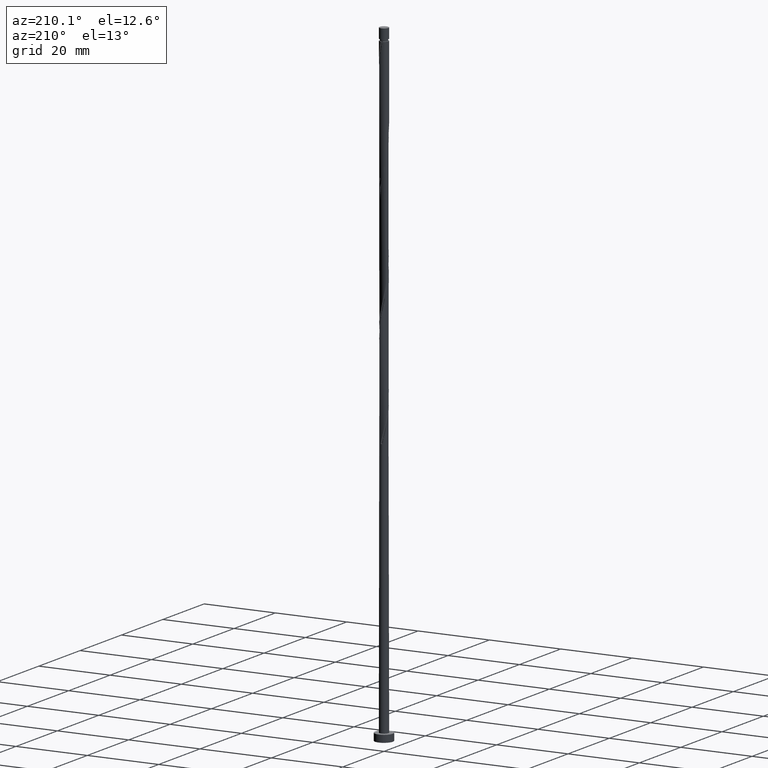
[diagram: clean part render]
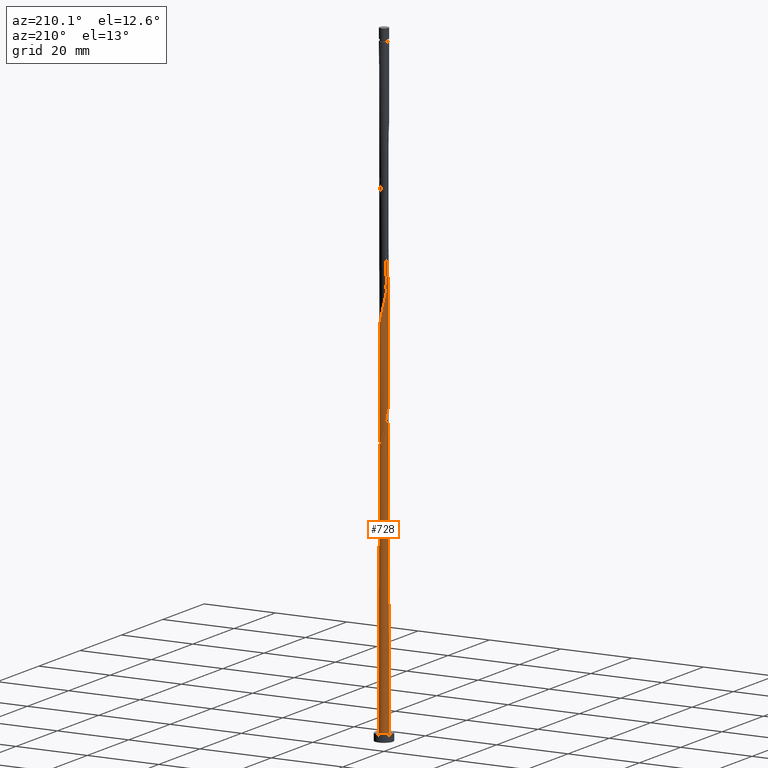
[diagram: same view with one face highlighted and labeled with its STEP entity id]
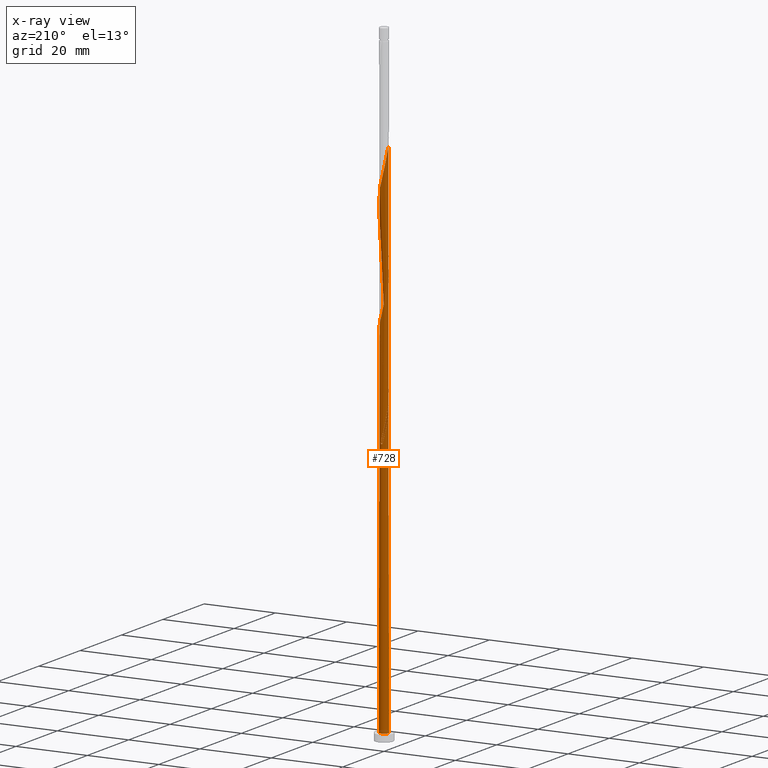
[diagram: x-ray of the same camera — body ghosted, the highlighted face saturated]
A machine part, auxiliary view. The second image highlights one B-rep face of the part: STEP entity #728.
The next image is the same camera in x-ray: the body ghosted, the highlighted face saturated — about 0% of this face is hidden behind the body in this view.
In plain terms, the highlighted cylindrical surface (bore or boss wall) has radius 1.25 mm, axis along (-0, -0, -1).
Its self-contained STEP definition (entity closure, byte-faithful):
#4 = CARTESIAN_POINT ( 'NONE',  ( 1.118878712613875503, 0.5573243458342023171, 133.7347614858564953 ) ) ;
#13 = CARTESIAN_POINT ( 'NONE',  ( 1.247639561794345431, -0.07678231466697474361, 130.9569837080787238 ) ) ;
#20 = CARTESIAN_POINT ( 'NONE',  ( -1.225000000000001643, -0.2487468592766560738, 115.6792059303009665 ) ) ;
#23 = CARTESIAN_POINT ( 'NONE',  ( -1.250000000000001554, -1.443040198809304432E-15, 81.28230594175752799 ) ) ;
#27 = CARTESIAN_POINT ( 'NONE',  ( -0.6903152159601426696, -1.042096397946901565, 119.8458725969675953 ) ) ;
#78 = CARTESIAN_POINT ( 'NONE',  ( 1.132978120250636156, -0.5531206224436048258, 95.54031704141206660 ) ) ;
#87 = CARTESIAN_POINT ( 'NONE',  ( 0.2487468592766559627, -1.225000000000001643, 90.67920593030093812 ) ) ;
#98 = DIRECTION ( 'NONE',  ( -0.000000000000000000, -0.000000000000000000, -1.000000000000000000 ) ) ;
#102 = CARTESIAN_POINT ( 'NONE',  ( -1.118878712613875059, -0.5573243458342029832, 83.73476148585649526 ) ) ;
#117 = CARTESIAN_POINT ( 'NONE',  ( -0.2487468592766557962, 1.225000000000001643, 140.6792059303009523 ) ) ;
#124 = CARTESIAN_POINT ( 'NONE',  ( 0.9365076899976113589, 0.8279210992451772055, 101.7903170414120524 ) ) ;
#132 = CARTESIAN_POINT ( 'NONE',  ( -0.2410371790660436331, -1.237530978297897155, 121.9292059303009665 ) ) ;
#140 = CARTESIAN_POINT ( 'NONE',  ( 1.045505570518540983, 0.7046275228471891028, 134.4292059303009523 ) ) ;
#147 = CARTESIAN_POINT ( 'NONE',  ( 1.185254549274266767, -0.3970789007548243266, 129.5680948191898096 ) ) ;
#157 = CARTESIAN_POINT ( 'NONE',  ( -1.118878712613872839, 0.5573243458342023171, 80.95698370807873800 ) ) ;
#170 = EDGE_CURVE ( 'NONE', #1108, #864, #770, .T. ) ;
#186 = CARTESIAN_POINT ( 'NONE',  ( -1.237530978297897155, 0.2410371790660435221, 146.9292059303009523 ) ) ;
#188 = DIRECTION ( 'NONE',  ( -0.000000000000000000, -0.000000000000000000, -1.000000000000000000 ) ) ;
#196 = CARTESIAN_POINT ( 'NONE',  ( 0.7046275228471893248, -1.045505570518540983, 92.76253926363428093 ) ) ;
#199 = VERTEX_POINT ( 'NONE', #948 ) ;
#209 = ORIENTED_EDGE ( 'NONE', *, *, #856, .F. ) ;
#225 = CARTESIAN_POINT ( 'NONE',  ( -1.042096397946901787, 0.6903152159601426696, 78.17920593030092391 ) ) ;
#230 = CARTESIAN_POINT ( 'NONE',  ( -0.07678231466697406360, -1.247639561794345431, 89.29031704141205239 ) ) ;
#233 = CARTESIAN_POINT ( 'NONE',  ( -1.250000000000001554, 0.03842743957209403954, 81.11914225372937892 ) ) ;
#237 = CARTESIAN_POINT ( 'NONE',  ( 0.6903152159601426696, 1.042096397946901121, 136.5125392636342951 ) ) ;
#244 = CARTESIAN_POINT ( 'NONE',  ( -1.045505570518540983, -0.7046275228471895469, 117.7625392636342809 ) ) ;
#254 = CARTESIAN_POINT ( 'NONE',  ( 0.2410371790660443270, 1.237530978297896933, 105.2625392636342809 ) ) ;
#261 = CARTESIAN_POINT ( 'NONE',  ( 1.225000000000001643, 0.2487468592766559072, 132.3458725969676095 ) ) ;
#271 = CARTESIAN_POINT ( 'NONE',  ( -0.07678231466697406360, -1.247639561794345431, 122.6236503747453668 ) ) ;
#284 = ORIENTED_EDGE ( 'NONE', *, *, #393, .F. ) ;
#287 = CARTESIAN_POINT ( 'NONE',  ( -1.250000000000002220, 0.03842743957208432509, 147.7858089203961072 ) ) ;
#289 = CARTESIAN_POINT ( 'NONE',  ( -0.8275098094766792922, 0.9512146756431647532, 78.87365037474536678 ) ) ;
#309 = VERTEX_POINT ( 'NONE', #934 ) ;
#313 = CARTESIAN_POINT ( 'NONE',  ( -1.250000000000000000, -1.416871076032980706E-15, 83.40943925217766264 ) ) ;
#323 = EDGE_CURVE ( 'NONE', #472, #1108, #445, .T. ) ;
#336 = CARTESIAN_POINT ( 'NONE',  ( -1.247639561794345431, 0.07678231466697399421, 80.95698370807872379 ) ) ;
#349 = DIRECTION ( 'NONE',  ( 0.000000000000000000, 0.000000000000000000, 1.000000000000000000 ) ) ;
#362 = CARTESIAN_POINT ( 'NONE',  ( -1.185254549274266767, 0.3970789007548239935, 112.9014281525231524 ) ) ;
#366 = ORIENTED_EDGE ( 'NONE', *, *, #1012, .F. ) ;
#370 = CARTESIAN_POINT ( 'NONE',  ( -1.247639561794345431, 0.07678231466697399421, 114.2903170414120098 ) ) ;
#379 = CARTESIAN_POINT ( 'NONE',  ( 0.3970789007548243266, 1.185254549274266545, 137.9014281525231524 ) ) ;
#388 = CARTESIAN_POINT ( 'NONE',  ( -0.3970789007548242155, -1.185254549274266767, 121.2347614858565095 ) ) ;
#393 = EDGE_CURVE ( 'NONE', #1166, #472, #1492, .T. ) ;
#397 = CARTESIAN_POINT ( 'NONE',  ( -0.8279210992451777607, 0.9365076899976108038, 110.1236503747453668 ) ) ;
#401 = CIRCLE ( 'NONE', #824, 1.250000000000000000 ) ;
#411 = CARTESIAN_POINT ( 'NONE',  ( -1.185254549274266767, 0.3970789007548239935, 146.2347614858564953 ) ) ;
#445 = LINE ( 'NONE', #810, #1324 ) ;
#465 = CYLINDRICAL_SURFACE ( 'NONE', #711, 1.250000000000000000 ) ;
#472 = VERTEX_POINT ( 'NONE', #1201 ) ;
#489 = CARTESIAN_POINT ( 'NONE',  ( 0.2487468592766562125, 1.224999999999999645, 74.01253926363426672 ) ) ;
#494 = CARTESIAN_POINT ( 'NONE',  ( -0.7046275228471897689, 1.045505570518540761, 109.4292059303009665 ) ) ;
#502 = CARTESIAN_POINT ( 'NONE',  ( 0.6903152159601426696, 1.042096397946901121, 103.1792059303009381 ) ) ;
#509 = CARTESIAN_POINT ( 'NONE',  ( 1.192251854709210024, 0.4100211688212159755, 133.0403170414120666 ) ) ;
#517 = CARTESIAN_POINT ( 'NONE',  ( -1.132978120250636822, 0.5531206224436041596, 112.2069837080787238 ) ) ;
#521 = CARTESIAN_POINT ( 'NONE',  ( -1.250000000000000000, 0.000000000000000000, 2.000000000000000000 ) ) ;
#538 = EDGE_CURVE ( 'NONE', #1231, #199, #401, .T. ) ;
#554 = CARTESIAN_POINT ( 'NONE',  ( -0.9512146756431660855, 0.8275098094766810686, 144.1514281525232377 ) ) ;
#573 = CARTESIAN_POINT ( 'NONE',  ( 1.185254549274266767, -0.3970789007548243266, 96.23476148585648104 ) ) ;
#602 = CARTESIAN_POINT ( 'NONE',  ( -1.045505570518540983, -0.7046275228471895469, 84.42920593030093812 ) ) ;
#609 = CARTESIAN_POINT ( 'NONE',  ( 0.08747254973209546425, -1.257748145290794151, 89.98476148585650947 ) ) ;
#613 = ORIENTED_EDGE ( 'NONE', *, *, #983, .T. ) ;
#616 = CARTESIAN_POINT ( 'NONE',  ( -0.5573243458342029832, 1.118878712613875059, 142.0680948191898949 ) ) ;
#624 = CARTESIAN_POINT ( 'NONE',  ( 0.9512146756431656414, -0.8275098094766812906, 127.4847614858565237 ) ) ;
#632 = CARTESIAN_POINT ( 'NONE',  ( 1.257748145290794151, 0.08747254973209481199, 131.6514281525232093 ) ) ;
#639 = CARTESIAN_POINT ( 'NONE',  ( 0.8275098094766818457, 0.9512146756431651973, 102.4847614858564810 ) ) ;
#647 = CARTESIAN_POINT ( 'NONE',  ( -1.237530978297897155, 0.2410371790660435221, 113.5958725969676237 ) ) ;
#656 = CARTESIAN_POINT ( 'NONE',  ( -1.045505570518538763, 0.7046275228471886587, 80.26253926363426672 ) ) ;
#670 = CARTESIAN_POINT ( 'NONE',  ( -0.8279210992451777607, 0.9365076899976108038, 143.4569837080787238 ) ) ;
#686 = CARTESIAN_POINT ( 'NONE',  ( -1.247639561794345431, 0.07678231466697399421, 147.6236503747454094 ) ) ;
#688 = CARTESIAN_POINT ( 'NONE',  ( -1.224999999999999645, 0.2487468592766559072, 82.34587259696759531 ) ) ;
#698 = CARTESIAN_POINT ( 'NONE',  ( 0.9512146756431656414, -0.8275098094766812906, 94.15142815252315245 ) ) ;
#705 = CARTESIAN_POINT ( 'NONE',  ( -0.3970789007548228278, 1.185254549274265212, 76.79031704141203818 ) ) ;
#709 = DIRECTION ( 'NONE',  ( -1.000000000000000000, 0.000000000000000000, 0.000000000000000000 ) ) ;
#711 = AXIS2_PLACEMENT_3D ( 'NONE', #1107, #974, #709 ) ;
#724 = CARTESIAN_POINT ( 'NONE',  ( -0.4100211688212162531, 1.192251854709209580, 74.70698370807873800 ) ) ;
#728 = ADVANCED_FACE ( 'NONE', ( #1593 ), #465, .T. ) ;
#731 = CARTESIAN_POINT ( 'NONE',  ( -1.250000000000001554, -1.443040198809304432E-15, 81.28230594175752799 ) ) ;
#732 = CARTESIAN_POINT ( 'NONE',  ( 0.08747254973209603324, 1.257748145290791930, 74.70698370807869537 ) ) ;
#737 = CARTESIAN_POINT ( 'NONE',  ( 0.2410371790660443270, 1.237530978297896933, 138.5958725969675811 ) ) ;
#747 = CARTESIAN_POINT ( 'NONE',  ( 0.8279210992451776496, -0.9365076899976111369, 126.7903170414120382 ) ) ;
#755 = CARTESIAN_POINT ( 'NONE',  ( -0.9365076899976109148, -0.8279210992451776496, 118.4569837080787380 ) ) ;
#764 = CARTESIAN_POINT ( 'NONE',  ( -0.4100211688212162531, 1.192251854709209580, 108.0403170414120666 ) ) ;
#766 = VECTOR ( 'NONE', #98, 1000.000000000000000 ) ;
#770 =( BOUNDED_CURVE ( )  B_SPLINE_CURVE ( 2, ( #313, #818, #688, #1292, #157, #656, #1172, #289, #795, #952, #705, #872, #1367, #732, #1502 ),
 .UNSPECIFIED., .F., .T. ) 
 B_SPLINE_CURVE_WITH_KNOTS ( ( 3, 2, 2, 2, 2, 2, 2, 3 ),
 ( 0.9295317669814462391, 0.9375000000000000000, 0.9479166666666666297, 0.9583333333333333703, 0.9687500000000000000, 0.9791666666666666297, 0.9895833333333333703, 1.000000000000000000 ),
 .UNSPECIFIED. ) 
 CURVE ( )  GEOMETRIC_REPRESENTATION_ITEM ( )  RATIONAL_B_SPLINE_CURVE ( ( 0.9062941362546588220, 0.9031415850403630152, 0.9090909090909385926, 0.9013135103398568493, 0.9090909090909385926, 0.9013135103398568493, 0.9090909090909385926, 0.9013135103398568493, 0.9090909090909385926, 0.9013135103398568493, 0.9090909090909385926, 0.9013135103398568493, 0.9090909090909385926, 0.9013135103398568493, 0.9090909090909385926 ) ) 
 REPRESENTATION_ITEM ( '' )  );
#775 = CARTESIAN_POINT ( 'NONE',  ( 0.7046275228471893248, -1.045505570518540983, 126.0958725969676095 ) ) ;
#795 = CARTESIAN_POINT ( 'NONE',  ( -0.6903152159601410043, 1.042096397946900010, 78.17920593030093812 ) ) ;
#810 = CARTESIAN_POINT ( 'NONE',  ( -1.250000000000000000, 0.000000000000000000, 177.3000000000000114 ) ) ;
#818 = CARTESIAN_POINT ( 'NONE',  ( -1.249999999999999778, 0.1256297269074014289, 82.87601288298839108 ) ) ;
#824 = AXIS2_PLACEMENT_3D ( 'NONE', #1066, #1560, #1423 ) ;
#837 = CARTESIAN_POINT ( 'NONE',  ( -0.2410371790660436331, -1.237530978297897155, 88.59587259696762374 ) ) ;
#848 = DIRECTION ( 'NONE',  ( 1.000000000000000000, 0.000000000000000000, 0.000000000000000000 ) ) ;
#856 = EDGE_CURVE ( 'NONE', #309, #1166, #1158, .T. ) ;
#860 = CARTESIAN_POINT ( 'NONE',  ( -0.5531206224436046037, -1.132978120250636822, 87.20698370807872379 ) ) ;
#864 = VERTEX_POINT ( 'NONE', #489 ) ;
#869 = CARTESIAN_POINT ( 'NONE',  ( -1.118878712613875059, -0.5573243458342029832, 117.0680948191898381 ) ) ;
#872 = CARTESIAN_POINT ( 'NONE',  ( -0.2410371790660428004, 1.237530978297895379, 76.09587259696759531 ) ) ;
#879 = CARTESIAN_POINT ( 'NONE',  ( -1.192251854709210024, -0.4100211688212160865, 116.3736503747453952 ) ) ;
#887 = CARTESIAN_POINT ( 'NONE',  ( -0.08747254973209467321, 1.257748145290794151, 139.9847614858564384 ) ) ;
#890 = CARTESIAN_POINT ( 'NONE',  ( 0.000000000000000000, 0.000000000000000000, 74.01253926363426672 ) ) ;
#895 = CARTESIAN_POINT ( 'NONE',  ( 0.08747254973209546425, -1.257748145290794151, 123.3180948191898096 ) ) ;
#902 = CARTESIAN_POINT ( 'NONE',  ( -1.257748145290794151, -0.08747254973209581119, 114.9847614858564953 ) ) ;
#911 = CARTESIAN_POINT ( 'NONE',  ( -1.250000000000001776, 7.177816532937473053E-16, 147.9489726084242704 ) ) ;
#934 = CARTESIAN_POINT ( 'NONE',  ( -0.2487468592766557962, 1.225000000000001643, 74.01253926363426672 ) ) ;
#948 = CARTESIAN_POINT ( 'NONE',  ( 1.250000000000000000, 0.000000000000000000, 2.000000000000000000 ) ) ;
#952 = CARTESIAN_POINT ( 'NONE',  ( -0.5531206224436029384, 1.132978120250634380, 77.48476148585650947 ) ) ;
#956 = ORIENTED_EDGE ( 'NONE', *, *, #538, .T. ) ;
#964 = CARTESIAN_POINT ( 'NONE',  ( 1.257748145290794151, 0.08747254973209481199, 98.31809481918983806 ) ) ;
#974 = DIRECTION ( 'NONE',  ( -0.000000000000000000, -0.000000000000000000, -1.000000000000000000 ) ) ;
#977 = CARTESIAN_POINT ( 'NONE',  ( -1.250000000000001554, -1.443040198809304432E-15, 81.28230594175752799 ) ) ;
#981 = CARTESIAN_POINT ( 'NONE',  ( -0.8279210992451777607, 0.9365076899976108038, 76.79031704141205239 ) ) ;
#983 = EDGE_CURVE ( 'NONE', #199, #1231, #985, .T. ) ;
#985 = CIRCLE ( 'NONE', #1222, 1.250000000000000000 ) ;
#989 = CARTESIAN_POINT ( 'NONE',  ( -0.9365076899976109148, -0.8279210992451776496, 85.12365037474538099 ) ) ;
#997 = CARTESIAN_POINT ( 'NONE',  ( 0.5573243458342025392, -1.118878712613875503, 125.4014281525231809 ) ) ;
#999 = CARTESIAN_POINT ( 'NONE',  ( -0.7046275228471897689, 1.045505570518540761, 76.09587259696758110 ) ) ;
#1004 = CARTESIAN_POINT ( 'NONE',  ( 1.192251854709210024, 0.4100211688212159755, 99.70698370807870958 ) ) ;
#1012 = EDGE_CURVE ( 'NONE', #1166, #1231, #1099, .T. ) ;
#1013 = CARTESIAN_POINT ( 'NONE',  ( 0.9365076899976113589, 0.8279210992451772055, 135.1236503747453526 ) ) ;
#1016 = CARTESIAN_POINT ( 'NONE',  ( -1.250000000000000000, -1.416871076032980706E-15, 83.40943925217766264 ) ) ;
#1020 = CARTESIAN_POINT ( 'NONE',  ( -0.4100211688212162531, 1.192251854709209580, 141.3736503747453526 ) ) ;
#1027 = CARTESIAN_POINT ( 'NONE',  ( 0.4100211688212159755, -1.192251854709210024, 124.7069837080787380 ) ) ;
#1037 = AXIS2_PLACEMENT_3D ( 'NONE', #890, #1392, #1630 ) ;
#1066 = CARTESIAN_POINT ( 'NONE',  ( 0.000000000000000000, 0.000000000000000000, 2.000000000000000000 ) ) ;
#1084 = CARTESIAN_POINT ( 'NONE',  ( 1.237530978297896933, -0.2410371790660442159, 96.92920593030095233 ) ) ;
#1095 = CARTESIAN_POINT ( 'NONE',  ( 0.8279210992451776496, -0.9365076899976111369, 93.45698370807868116 ) ) ;
#1099 = LINE ( 'NONE', #1615, #766 ) ;
#1107 = CARTESIAN_POINT ( 'NONE',  ( 0.000000000000000000, 0.000000000000000000, 177.3000000000000114 ) ) ;
#1108 = VERTEX_POINT ( 'NONE', #1016 ) ;
#1114 = CARTESIAN_POINT ( 'NONE',  ( 0.000000000000000000, 0.000000000000000000, 2.000000000000000000 ) ) ;
#1119 = CARTESIAN_POINT ( 'NONE',  ( 0.4100211688212159755, -1.192251854709210024, 91.37365037474539520 ) ) ;
#1121 = CARTESIAN_POINT ( 'NONE',  ( -0.5573243458342029832, 1.118878712613875059, 75.40142815252316666 ) ) ;
#1125 = CARTESIAN_POINT ( 'NONE',  ( -0.7046275228471897689, 1.045505570518540761, 142.7625392636343236 ) ) ;
#1134 = CARTESIAN_POINT ( 'NONE',  ( 1.132978120250636156, -0.5531206224436048258, 128.8736503747453810 ) ) ;
#1144 = CARTESIAN_POINT ( 'NONE',  ( 0.07678231466697481300, 1.247639561794345431, 139.2903170414120382 ) ) ;
#1151 = CARTESIAN_POINT ( 'NONE',  ( 0.07678231466697481300, 1.247639561794345431, 105.9569837080787380 ) ) ;
#1158 =( BOUNDED_CURVE ( )  B_SPLINE_CURVE ( 2, ( #1351, #724, #1121, #999, #981, #1230, #225, #1483, #1601, #1237, #336, #233, #731 ),
 .UNSPECIFIED., .F., .T. ) 
 B_SPLINE_CURVE_WITH_KNOTS ( ( 3, 2, 2, 2, 2, 2, 3 ),
 ( 0.000000000000000000, 0.01041666666666662966, 0.02083333333333337034, 0.03125000000000000000, 0.04166666666666662966, 0.05208333333333336340, 0.05453176698144614892 ),
 .UNSPECIFIED. ) 
 CURVE ( )  GEOMETRIC_REPRESENTATION_ITEM ( )  RATIONAL_B_SPLINE_CURVE ( ( 0.9090909090909453649, 0.9013135103398636216, 0.9090909090909453649, 0.9013135103398636216, 0.9090909090909453649, 0.9013135103398636216, 0.9090909090909453649, 0.9013135103398636216, 0.9090909090909453649, 0.9013135103398636216, 0.9090909090909453649, 0.9072628343904391990, 0.9062941362546657054 ) ) 
 REPRESENTATION_ITEM ( '' )  );
#1162 = CARTESIAN_POINT ( 'NONE',  ( 1.045505570518540983, 0.7046275228471891028, 101.0958725969676095 ) ) ;
#1166 = VERTEX_POINT ( 'NONE', #23 ) ;
#1172 = CARTESIAN_POINT ( 'NONE',  ( -0.9365076899976090274, 0.8279210992451766504, 79.56809481918985227 ) ) ;
#1182 = ORIENTED_EDGE ( 'NONE', *, *, #1371, .T. ) ;
#1201 = CARTESIAN_POINT ( 'NONE',  ( -1.250000000000001776, 7.177816532937473053E-16, 147.9489726084242704 ) ) ;
#1212 = CARTESIAN_POINT ( 'NONE',  ( 1.042096397946900899, -0.6903152159601431137, 94.84587259696762374 ) ) ;
#1219 = CARTESIAN_POINT ( 'NONE',  ( -0.8275098094766812906, -0.9512146756431656414, 85.81809481918983806 ) ) ;
#1222 = AXIS2_PLACEMENT_3D ( 'NONE', #1114, #349, #848 ) ;
#1230 = CARTESIAN_POINT ( 'NONE',  ( -0.9512146756431660855, 0.8275098094766810686, 77.48476148585650947 ) ) ;
#1231 = VERTEX_POINT ( 'NONE', #521 ) ;
#1234 = CARTESIAN_POINT ( 'NONE',  ( -1.192251854709210024, -0.4100211688212160865, 83.04031704141206660 ) ) ;
#1237 = CARTESIAN_POINT ( 'NONE',  ( -1.237530978297897155, 0.2410371790660435221, 80.26253926363428093 ) ) ;
#1250 = CARTESIAN_POINT ( 'NONE',  ( -0.08747254973209467321, 1.257748145290794151, 106.6514281525231667 ) ) ;
#1258 = CARTESIAN_POINT ( 'NONE',  ( -0.5573243458342029832, 1.118878712613875059, 108.7347614858564953 ) ) ;
#1267 = CARTESIAN_POINT ( 'NONE',  ( -1.042096397946901787, 0.6903152159601426696, 111.5125392636342951 ) ) ;
#1277 = CARTESIAN_POINT ( 'NONE',  ( -0.9512146756431660855, 0.8275098094766810686, 110.8180948191898665 ) ) ;
#1284 = CARTESIAN_POINT ( 'NONE',  ( 1.042096397946900899, -0.6903152159601431137, 128.1792059303009523 ) ) ;
#1292 = CARTESIAN_POINT ( 'NONE',  ( -1.192251854709207581, 0.4100211688212158090, 81.65142815252316666 ) ) ;
#1307 = CARTESIAN_POINT ( 'NONE',  ( -1.132978120250636822, 0.5531206224436041596, 145.5403170414120382 ) ) ;
#1324 = VECTOR ( 'NONE', #188, 1000.000000000000000 ) ;
#1334 = CARTESIAN_POINT ( 'NONE',  ( 0.5573243458342025392, -1.118878712613875503, 92.06809481918982385 ) ) ;
#1348 = CARTESIAN_POINT ( 'NONE',  ( -1.250000000000002442, -0.1256297269073996248, 81.81573231094679954 ) ) ;
#1351 = CARTESIAN_POINT ( 'NONE',  ( -0.2487468592766557962, 1.225000000000001643, 74.01253926363426672 ) ) ;
#1362 = CARTESIAN_POINT ( 'NONE',  ( -0.3970789007548242155, -1.185254549274266767, 87.90142815252318087 ) ) ;
#1367 = CARTESIAN_POINT ( 'NONE',  ( -0.07678231466697338359, 1.247639561794343432, 75.40142815252315245 ) ) ;
#1368 = EDGE_LOOP ( 'NONE', ( #1496, #284, #1471, #956, #613, #366, #209, #1182, #1585 ) ) ;
#1371 = EDGE_CURVE ( 'NONE', #309, #864, #1484, .T. ) ;
#1372 = CARTESIAN_POINT ( 'NONE',  ( 0.8275098094766818457, 0.9512146756431651973, 135.8180948191898096 ) ) ;
#1380 = CARTESIAN_POINT ( 'NONE',  ( 0.2487468592766559627, -1.225000000000001643, 124.0125392636342809 ) ) ;
#1389 = CARTESIAN_POINT ( 'NONE',  ( 1.225000000000001643, 0.2487468592766559072, 99.01253926363429514 ) ) ;
#1392 = DIRECTION ( 'NONE',  ( 0.000000000000000000, -0.000000000000000000, -1.000000000000000000 ) ) ;
#1398 = CARTESIAN_POINT ( 'NONE',  ( 1.118878712613875503, 0.5573243458342023171, 100.4014281525231667 ) ) ;
#1409 = CARTESIAN_POINT ( 'NONE',  ( -0.5531206224436046037, -1.132978120250636822, 120.5403170414120524 ) ) ;
#1423 = DIRECTION ( 'NONE',  ( 1.000000000000000000, 0.000000000000000000, 0.000000000000000000 ) ) ;
#1436 = CARTESIAN_POINT ( 'NONE',  ( -1.042096397946901787, 0.6903152159601426696, 144.8458725969676095 ) ) ;
#1471 = ORIENTED_EDGE ( 'NONE', *, *, #1012, .T. ) ;
#1483 = CARTESIAN_POINT ( 'NONE',  ( -1.132978120250636822, 0.5531206224436041596, 78.87365037474536678 ) ) ;
#1484 = CIRCLE ( 'NONE', #1037, 1.250000000000000000 ) ;
#1488 = CARTESIAN_POINT ( 'NONE',  ( -0.6903152159601426696, -1.042096397946901565, 86.51253926363423830 ) ) ;
#1492 =( BOUNDED_CURVE ( )  B_SPLINE_CURVE ( 2, ( #977, #1348, #1604, #1234, #102, #602, #989, #1219, #1488, #860, #1362, #837, #230, #609, #87, #1119, #1334, #196, #1095, #698, #1212, #78, #573, #1084, #1588, #964, #1389, #1004, #1398, #1162, #124, #639, #502, #1627, #1530, #254, #1151, #1250, #1505, #764, #1258, #494, #397, #1277, #1267, #517, #362, #647, #370, #902, #20, #879, #869, #244, #755, #1523, #27, #1409, #388, #132, #271, #895, #1380, #1027, #997, #775, #747, #624, #1284, #1134, #147, #1499, #13, #632, #261, #509, #4, #140, #1013, #1372, #237, #1515, #379, #737, #1144, #887, #117, #1020, #616, #1125, #670, #554, #1436, #1307, #411, #186, #686, #287, #911 ),
 .UNSPECIFIED., .F., .T. ) 
 B_SPLINE_CURVE_WITH_KNOTS ( ( 3, 2, 2, 2, 2, 2, 2, 2, 2, 2, 2, 2, 2, 2, 2, 2, 2, 2, 2, 2, 2, 2, 2, 2, 2, 2, 2, 2, 2, 2, 2, 2, 2, 2, 2, 2, 2, 2, 2, 2, 2, 2, 2, 2, 2, 2, 2, 2, 2, 3 ),
 ( 0.05453176698144614892, 0.06250000000000000000, 0.07291666666666662966, 0.08333333333333337034, 0.09375000000000000000, 0.1041666666666666297, 0.1145833333333333703, 0.1250000000000000000, 0.1354166666666666297, 0.1458333333333333703, 0.1562500000000000000, 0.1666666666666666297, 0.1770833333333333703, 0.1875000000000000000, 0.1979166666666666297, 0.2083333333333333703, 0.2187500000000000000, 0.2291666666666666297, 0.2395833333333333703, 0.2500000000000000000, 0.2604166666666666297, 0.2708333333333333703, 0.2812500000000000000, 0.2916666666666666297, 0.3020833333333333703, 0.3125000000000000000, 0.3229166666666666297, 0.3333333333333333703, 0.3437500000000000000, 0.3541666666666666297, 0.3645833333333333703, 0.3750000000000000000, 0.3854166666666666297, 0.3958333333333333703, 0.4062500000000000000, 0.4166666666666666297, 0.4270833333333333703, 0.4375000000000000000, 0.4479166666666666297, 0.4583333333333333703, 0.4687500000000000000, 0.4791666666666666297, 0.4895833333333333703, 0.5000000000000000000, 0.5104166666666667407, 0.5208333333333332593, 0.5312500000000000000, 0.5416666666666667407, 0.5520833333333332593, 0.5545317669814466832 ),
 .UNSPECIFIED. ) 
 CURVE ( )  GEOMETRIC_REPRESENTATION_ITEM ( )  RATIONAL_B_SPLINE_CURVE ( ( 0.9062941362546657054, 0.9031415850403696766, 0.9090909090909453649, 0.9013135103398636216, 0.9090909090909453649, 0.9013135103398636216, 0.9090909090909453649, 0.9013135103398636216, 0.9090909090909453649, 0.9013135103398636216, 0.9090909090909453649, 0.9013135103398636216, 0.9090909090909453649, 0.9013135103398636216, 0.9090909090909453649, 0.9013135103398636216, 0.9090909090909453649, 0.9013135103398636216, 0.9090909090909453649, 0.9013135103398636216, 0.9090909090909453649, 0.9013135103398636216, 0.9090909090909453649, 0.9013135103398636216, 0.9090909090909453649, 0.9013135103398636216, 0.9090909090909453649, 0.9013135103398636216, 0.9090909090909453649, 0.9013135103398636216, 0.9090909090909453649, 0.9013135103398636216, 0.9090909090909453649, 0.9013135103398636216, 0.9090909090909453649, 0.9013135103398636216, 0.9090909090909453649, 0.9013135103398636216, 0.9090909090909453649, 0.9013135103398636216, 0.9090909090909453649, 0.9013135103398636216, 0.9090909090909453649, 0.9013135103398636216, 0.9090909090909453649, 0.9013135103398636216, 0.9090909090909453649, 0.9013135103398636216, 0.9090909090909453649, 0.9013135103398636216, 0.9090909090909453649, 0.9013135103398636216, 0.9090909090909453649, 0.9013135103398636216, 0.9090909090909453649, 0.9013135103398636216, 0.9090909090909453649, 0.9013135103398636216, 0.9090909090909453649, 0.9013135103398636216, 0.9090909090909453649, 0.9013135103398636216, 0.9090909090909453649, 0.9013135103398636216, 0.9090909090909453649, 0.9013135103398636216, 0.9090909090909453649, 0.9013135103398636216, 0.9090909090909453649, 0.9013135103398636216, 0.9090909090909453649, 0.9013135103398636216, 0.9090909090909453649, 0.9013135103398636216, 0.9090909090909453649, 0.9013135103398636216, 0.9090909090909453649, 0.9013135103398636216, 0.9090909090909453649, 0.9013135103398636216, 0.9090909090909453649, 0.9013135103398636216, 0.9090909090909453649, 0.9013135103398636216, 0.9090909090909453649, 0.9013135103398636216, 0.9090909090909453649, 0.9013135103398636216, 0.9090909090909453649, 0.9013135103398636216, 0.9090909090909453649, 0.9013135103398636216, 0.9090909090909453649, 0.9013135103398636216, 0.9090909090909453649, 0.9013135103398636216, 0.9090909090909453649, 0.9072628343904387549, 0.9062941362546653723 ) ) 
 REPRESENTATION_ITEM ( '' )  );
#1496 = ORIENTED_EDGE ( 'NONE', *, *, #323, .F. ) ;
#1499 = CARTESIAN_POINT ( 'NONE',  ( 1.237530978297896933, -0.2410371790660442159, 130.2625392636342951 ) ) ;
#1502 = CARTESIAN_POINT ( 'NONE',  ( 0.2487468592766562125, 1.224999999999999645, 74.01253926363428093 ) ) ;
#1505 = CARTESIAN_POINT ( 'NONE',  ( -0.2487468592766557962, 1.225000000000001643, 107.3458725969676095 ) ) ;
#1515 = CARTESIAN_POINT ( 'NONE',  ( 0.5531206224436048258, 1.132978120250636156, 137.2069837080787522 ) ) ;
#1523 = CARTESIAN_POINT ( 'NONE',  ( -0.8275098094766812906, -0.9512146756431656414, 119.1514281525231809 ) ) ;
#1530 = CARTESIAN_POINT ( 'NONE',  ( 0.3970789007548243266, 1.185254549274266545, 104.5680948191898239 ) ) ;
#1560 = DIRECTION ( 'NONE',  ( 0.000000000000000000, 0.000000000000000000, 1.000000000000000000 ) ) ;
#1585 = ORIENTED_EDGE ( 'NONE', *, *, #170, .F. ) ;
#1588 = CARTESIAN_POINT ( 'NONE',  ( 1.247639561794345431, -0.07678231466697474361, 97.62365037474538099 ) ) ;
#1593 = FACE_OUTER_BOUND ( 'NONE', #1368, .T. ) ;
#1601 = CARTESIAN_POINT ( 'NONE',  ( -1.185254549274266767, 0.3970789007548239935, 79.56809481918985227 ) ) ;
#1604 = CARTESIAN_POINT ( 'NONE',  ( -1.225000000000001643, -0.2487468592766560738, 82.34587259696760952 ) ) ;
#1615 = CARTESIAN_POINT ( 'NONE',  ( -1.250000000000000000, 0.000000000000000000, 177.3000000000000114 ) ) ;
#1627 = CARTESIAN_POINT ( 'NONE',  ( 0.5531206224436048258, 1.132978120250636156, 103.8736503747453952 ) ) ;
#1630 = DIRECTION ( 'NONE',  ( -1.000000000000000000, 0.000000000000000000, 0.000000000000000000 ) ) ;